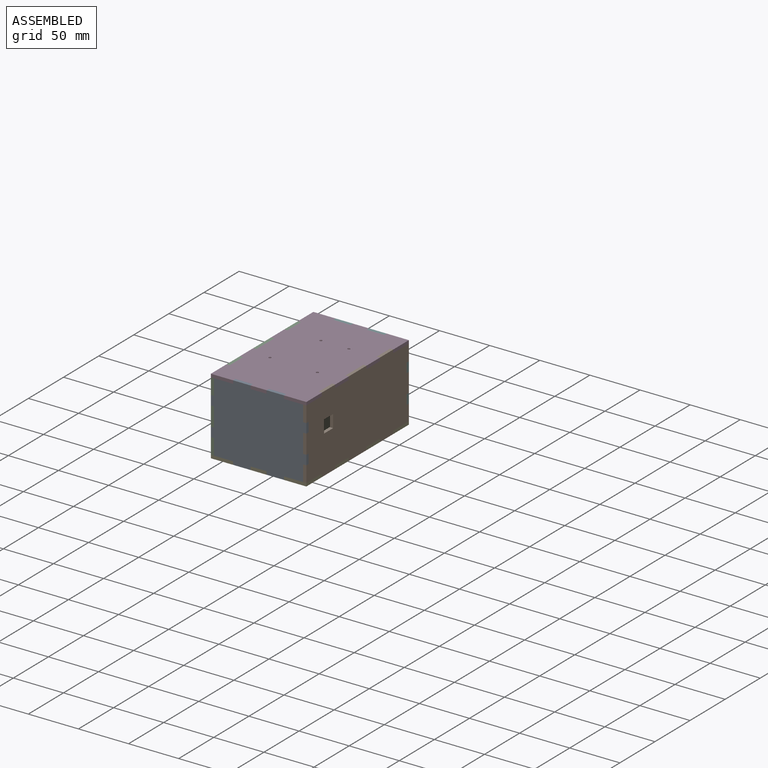
[diagram: assembled view]
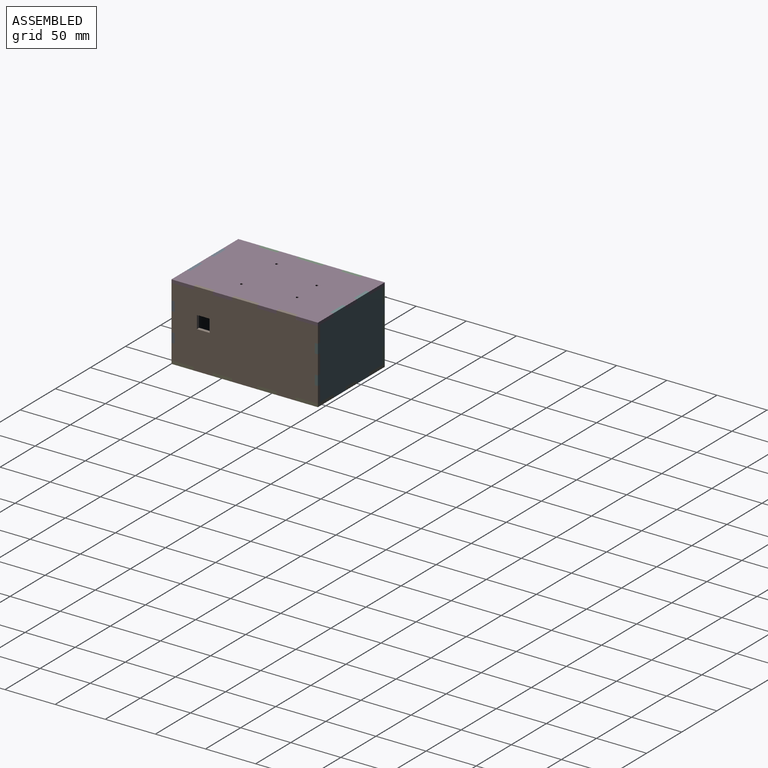
[diagram: assembled view, second angle]
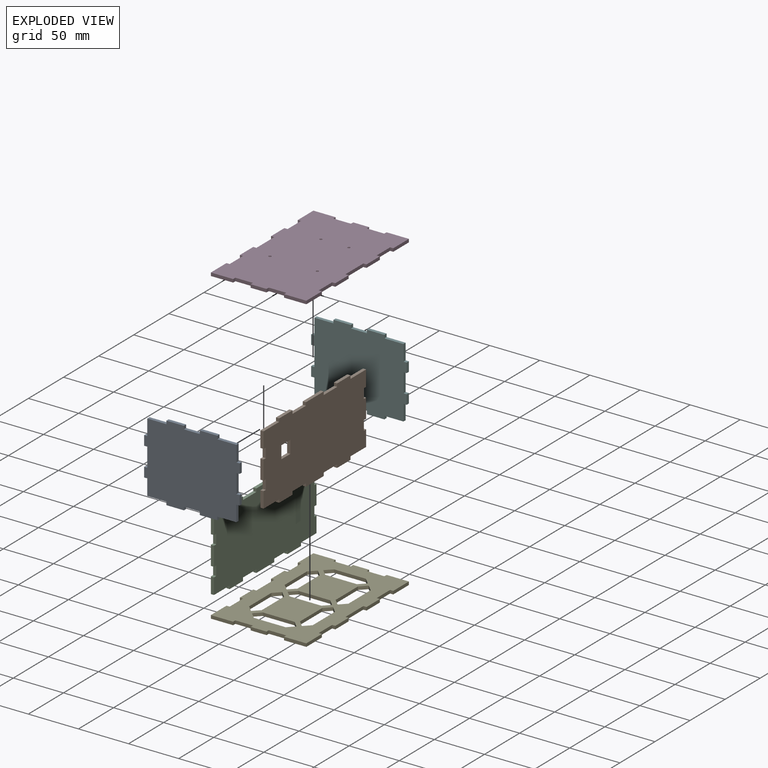
[diagram: exploded view]
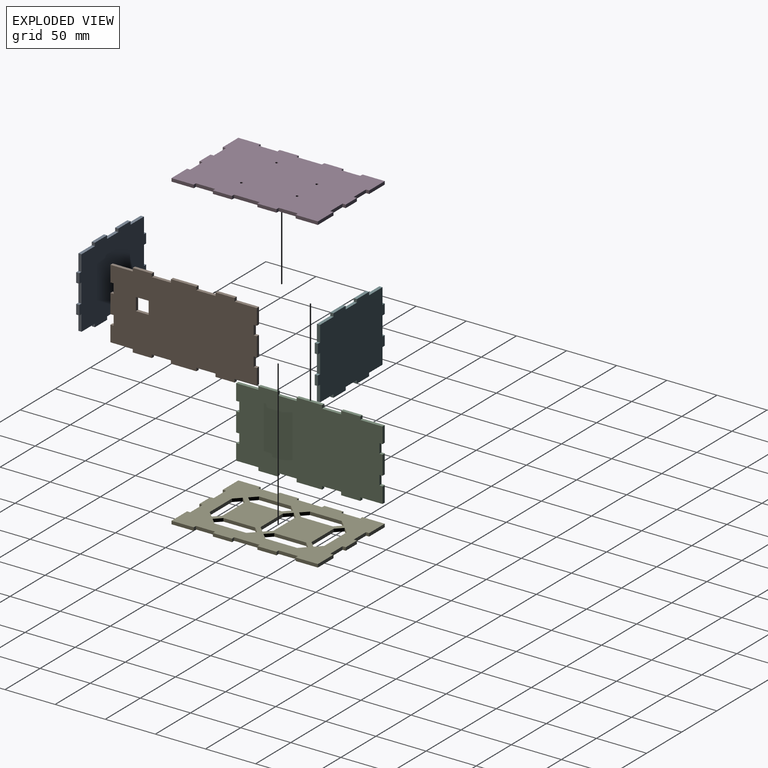
[diagram: exploded view, second angle]
ASSEMBLY  parts=6 mates=5
PART A: 38 faces, bbox 95.3x3.2x76.2 mm
  f0: plane 19.05x3.18mm, normal (-1,0,0), area 60.5mm2, adj f1,f35,f36,f37
  f1: plane 3.18x3.18mm, normal (0,0,1), area 10.1mm2, adj f0,f2,f36,f37
  f2: plane 9.53x3.18mm, normal (-1,0,0), area 30.2mm2, adj f1,f3,f36,f37
  f3: plane 3.18x3.18mm, normal (0,0,-1), area 10.1mm2, adj f2,f4,f36,f37
  f4: plane 15.88x3.18mm, normal (-1,0,0), area 50.4mm2, adj f3,f5,f36,f37
  f5: plane 19.05x3.18mm, normal (0,0,-1), area 60.5mm2, adj f4,f6,f36,f37
  f6: plane 3.18x3.18mm, normal (-1,0,0), area 10.1mm2, adj f5,f7,f36,f37
  f7: plane 17.45x3.18mm, normal (0,0,-1), area 55.4mm2, adj f6,f8,f36,f37
  f8: plane 3.18x3.18mm, normal (1,0,0), area 10.1mm2, adj f7,f9,f36,f37
  f9: plane 15.88x3.18mm, normal (0,0,-1), area 50.4mm2, adj f8,f10,f36,f37
  f10: plane 3.18x3.18mm, normal (-1,0,0), area 10.1mm2, adj f9,f11,f36,f37
  f11: plane 17.48x3.18mm, normal (0,0,-1), area 55.5mm2, adj f10,f12,f36,f37
  f12: plane 3.18x3.18mm, normal (1,0,0), area 10.1mm2, adj f11,f13,f36,f37
  f13: plane 19.05x3.18mm, normal (0,0,-1), area 60.5mm2, adj f12,f14,f36,f37
  f14: plane 15.88x3.18mm, normal (1,0,0), area 50.4mm2, adj f13,f15,f36,f37
  f15: plane 3.18x3.18mm, normal (0,0,-1), area 10.1mm2, adj f14,f16,f36,f37
  f16: plane 9.53x3.18mm, normal (1,0,0), area 30.2mm2, adj f15,f17,f36,f37
  f17: plane 3.18x3.18mm, normal (0,0,1), area 10.1mm2, adj f16,f18,f36,f37
  f18: plane 19.05x3.18mm, normal (1,0,0), area 60.5mm2, adj f17,f19,f36,f37
  f19: plane 3.18x3.18mm, normal (0,0,-1), area 10.1mm2, adj f18,f20,f36,f37
  f20: plane 9.53x3.18mm, normal (1,0,0), area 30.2mm2, adj f19,f21,f36,f37
  f21: plane 3.18x3.18mm, normal (0,0,1), area 10.1mm2, adj f20,f22,f36,f37
  f22: plane 15.88x3.18mm, normal (1,0,0), area 50.4mm2, adj f21,f23,f36,f37
  f23: plane 19.05x3.18mm, normal (0,0,1), area 60.5mm2, adj f22,f24,f36,f37
  f24: plane 3.18x3.18mm, normal (1,0,0), area 10.1mm2, adj f23,f25,f36,f37
  f25: plane 17.48x3.18mm, normal (0,0,1), area 55.5mm2, adj f24,f26,f36,f37
  f26: plane 3.18x3.18mm, normal (-1,0,0), area 10.1mm2, adj f25,f27,f36,f37
  f27: plane 15.88x3.18mm, normal (0,0,1), area 50.4mm2, adj f26,f28,f36,f37
  f28: plane 3.18x3.18mm, normal (1,0,0), area 10.1mm2, adj f27,f29,f36,f37
  f29: plane 17.45x3.18mm, normal (0,0,1), area 55.4mm2, adj f28,f30,f36,f37
  f30: plane 3.18x3.18mm, normal (-1,0,0), area 10.1mm2, adj f29,f31,f36,f37
  f31: plane 19.05x3.18mm, normal (0,0,1), area 60.5mm2, adj f30,f32,f36,f37
  f32: plane 15.88x3.18mm, normal (-1,0,0), area 50.4mm2, adj f31,f33,f36,f37
  f33: plane 3.18x3.18mm, normal (0,0,1), area 10.1mm2, adj f32,f34,f36,f37
  f34: plane 9.53x3.18mm, normal (-1,0,0), area 30.2mm2, adj f33,f35,f36,f37
  f35: plane 3.18x3.18mm, normal (0,0,-1), area 10.1mm2, adj f0,f34,f36,f37
  f36: plane 95.25x76.2mm, normal (0,1,0), area 6552.4mm2, adj f0,f1,f2,f3,f4,f5,f6,f7
  f37: plane 95.25x76.2mm, normal (0,-1,0), area 6552.4mm2, adj f0,f1,f2,f3,f4,f5,f6,f7
PART B: 50 faces, bbox 76.2x3.2x146.1 mm
  f0: plane 146.05x76.2mm, normal (0,1,0), area 10322.6mm2, adj f2,f3,f4,f5,f6,f7,f8,f9
  f1: plane 146.05x76.2mm, normal (0,-1,0), area 10322.6mm2, adj f2,f3,f4,f5,f6,f7,f8,f9
  f2: plane 9.53x3.18mm, normal (0,0,1), area 30.2mm2, adj f0,f1,f3,f45
  f3: plane 3.18x3.18mm, normal (1,0,0), area 10.1mm2, adj f0,f1,f2,f4
  f4: plane 15.88x3.18mm, normal (0,0,1), area 50.4mm2, adj f0,f1,f3,f5
  f5: plane 22.23x3.18mm, normal (-1,0,0), area 70.6mm2, adj f0,f1,f4,f6
  f6: plane 3.18x3.18mm, normal (0,0,1), area 10.1mm2, adj f0,f1,f5,f7
  f7: plane 19.05x3.18mm, normal (-1,0,0), area 60.5mm2, adj f0,f1,f6,f8
  f8: plane 3.18x3.18mm, normal (0,0,-1), area 10.1mm2, adj f0,f1,f7,f9
  f9: plane 19.05x3.18mm, normal (-1,0,0), area 60.5mm2, adj f0,f1,f8,f10
  f10: plane 3.18x3.18mm, normal (0,0,1), area 10.1mm2, adj f0,f1,f9,f11
  f11: plane 25.4x3.18mm, normal (-1,0,0), area 80.6mm2, adj f0,f1,f10,f12
  f12: plane 3.18x3.18mm, normal (0,0,-1), area 10.1mm2, adj f0,f1,f11,f13
  f13: plane 19.05x3.18mm, normal (-1,0,0), area 60.5mm2, adj f0,f1,f12,f14
  f14: plane 3.18x3.18mm, normal (0,0,1), area 10.1mm2, adj f0,f1,f13,f15
  f15: plane 19.05x3.18mm, normal (-1,0,0), area 60.5mm2, adj f0,f1,f14,f16
  f16: plane 3.18x3.18mm, normal (0,0,-1), area 10.1mm2, adj f0,f1,f15,f17
  f17: plane 22.23x3.18mm, normal (-1,0,0), area 70.6mm2, adj f0,f1,f16,f18
  f18: plane 15.88x3.18mm, normal (0,0,-1), area 50.4mm2, adj f0,f1,f17,f19
  f19: plane 3.18x3.18mm, normal (1,0,0), area 10.1mm2, adj f0,f1,f18,f20
  f20: plane 9.53x3.18mm, normal (0,0,-1), area 30.2mm2, adj f0,f1,f19,f21
  f21: plane 3.18x3.18mm, normal (-1,0,0), area 10.1mm2, adj f0,f1,f20,f22
  f22: plane 19.05x3.18mm, normal (0,0,-1), area 60.5mm2, adj f0,f1,f21,f23
  f23: plane 3.18x3.18mm, normal (1,0,0), area 10.1mm2, adj f0,f1,f22,f24
  f24: plane 9.53x3.18mm, normal (0,0,-1), area 30.2mm2, adj f0,f1,f23,f25
  f25: plane 3.18x3.18mm, normal (-1,0,0), area 10.1mm2, adj f0,f1,f24,f26
  f26: plane 15.88x3.18mm, normal (0,0,-1), area 50.4mm2, adj f0,f1,f25,f27
  f27: plane 22.23x3.18mm, normal (1,0,0), area 70.6mm2, adj f0,f1,f26,f28
  f28: plane 3.18x3.18mm, normal (0,0,-1), area 10.1mm2, adj f0,f1,f27,f29
  f29: plane 19.05x3.18mm, normal (1,0,0), area 60.5mm2, adj f0,f1,f28,f30
  f30: plane 3.18x3.18mm, normal (0,0,1), area 10.1mm2, adj f0,f1,f29,f31
  f31: plane 19.05x3.18mm, normal (1,0,0), area 60.5mm2, adj f0,f1,f30,f32
  f32: plane 3.18x3.18mm, normal (0,0,-1), area 10.1mm2, adj f0,f1,f31,f33
  f33: plane 25.4x3.18mm, normal (1,0,0), area 80.6mm2, adj f0,f1,f32,f34
  f34: plane 3.18x3.18mm, normal (0,0,1), area 10.1mm2, adj f0,f1,f33,f35
  f35: plane 19.05x3.18mm, normal (1,0,0), area 60.5mm2, adj f0,f1,f34,f36
  f36: plane 3.18x3.18mm, normal (0,0,-1), area 10.1mm2, adj f0,f1,f35,f37
  f37: plane 19.05x3.18mm, normal (1,0,0), area 60.5mm2, adj f0,f1,f36,f38
  f38: plane 3.18x3.18mm, normal (0,0,1), area 10.1mm2, adj f0,f1,f37,f39
  f39: plane 22.23x3.18mm, normal (1,0,0), area 70.6mm2, adj f0,f1,f38,f40
  f40: plane 15.88x3.18mm, normal (0,0,1), area 50.4mm2, adj f0,f1,f39,f41
  f41: plane 3.18x3.18mm, normal (-1,0,0), area 10.1mm2, adj f0,f1,f40,f42
  f42: plane 9.53x3.18mm, normal (0,0,1), area 30.2mm2, adj f0,f1,f41,f43
  f43: plane 3.18x3.18mm, normal (1,0,0), area 10.1mm2, adj f0,f1,f42,f44
  f44: plane 19.05x3.18mm, normal (0,0,1), area 60.5mm2, adj f0,f1,f43,f45
  f45: plane 3.18x3.18mm, normal (-1,0,0), area 10.1mm2, adj f0,f1,f2,f44
  f46: plane 12.7x3.18mm, normal (0,0,-1), area 40.3mm2, adj f0,f1,f47,f49
  f47: plane 12.7x3.18mm, normal (1,0,0), area 40.3mm2, adj f0,f1,f46,f48
  f48: plane 12.7x3.18mm, normal (0,0,1), area 40.3mm2, adj f0,f1,f47,f49
  f49: plane 12.7x3.18mm, normal (-1,0,0), area 40.3mm2, adj f0,f1,f46,f48
PART C: 46 faces, bbox 76.2x3.2x146.1 mm
  f0: plane 9.53x3.18mm, normal (0,0,1), area 30.2mm2, adj f1,f43,f44,f45
  f1: plane 3.18x3.18mm, normal (1,0,0), area 10.1mm2, adj f0,f2,f44,f45
  f2: plane 15.88x3.18mm, normal (0,0,1), area 50.4mm2, adj f1,f3,f44,f45
  f3: plane 22.23x3.18mm, normal (-1,0,0), area 70.6mm2, adj f2,f4,f44,f45
  f4: plane 3.18x3.18mm, normal (0,0,1), area 10.1mm2, adj f3,f5,f44,f45
  f5: plane 19.05x3.18mm, normal (-1,0,0), area 60.5mm2, adj f4,f6,f44,f45
  f6: plane 3.18x3.18mm, normal (0,0,-1), area 10.1mm2, adj f5,f7,f44,f45
  f7: plane 19.05x3.18mm, normal (-1,0,0), area 60.5mm2, adj f6,f8,f44,f45
  f8: plane 3.18x3.18mm, normal (0,0,1), area 10.1mm2, adj f7,f9,f44,f45
  f9: plane 25.4x3.18mm, normal (-1,0,0), area 80.6mm2, adj f8,f10,f44,f45
  f10: plane 3.18x3.18mm, normal (0,0,-1), area 10.1mm2, adj f9,f11,f44,f45
  f11: plane 19.05x3.18mm, normal (-1,0,0), area 60.5mm2, adj f10,f12,f44,f45
  f12: plane 3.18x3.18mm, normal (0,0,1), area 10.1mm2, adj f11,f13,f44,f45
  f13: plane 19.05x3.18mm, normal (-1,0,0), area 60.5mm2, adj f12,f14,f44,f45
  f14: plane 3.18x3.18mm, normal (0,0,-1), area 10.1mm2, adj f13,f15,f44,f45
  f15: plane 22.23x3.18mm, normal (-1,0,0), area 70.6mm2, adj f14,f16,f44,f45
  f16: plane 15.88x3.18mm, normal (0,0,-1), area 50.4mm2, adj f15,f17,f44,f45
  f17: plane 3.18x3.18mm, normal (1,0,0), area 10.1mm2, adj f16,f18,f44,f45
  f18: plane 9.53x3.18mm, normal (0,0,-1), area 30.2mm2, adj f17,f19,f44,f45
  f19: plane 3.18x3.18mm, normal (-1,0,0), area 10.1mm2, adj f18,f20,f44,f45
  f20: plane 19.05x3.18mm, normal (0,0,-1), area 60.5mm2, adj f19,f21,f44,f45
  f21: plane 3.18x3.18mm, normal (1,0,0), area 10.1mm2, adj f20,f22,f44,f45
  f22: plane 9.53x3.18mm, normal (0,0,-1), area 30.2mm2, adj f21,f23,f44,f45
  f23: plane 3.18x3.18mm, normal (-1,0,0), area 10.1mm2, adj f22,f24,f44,f45
  f24: plane 15.88x3.18mm, normal (0,0,-1), area 50.4mm2, adj f23,f25,f44,f45
  f25: plane 22.23x3.18mm, normal (1,0,0), area 70.6mm2, adj f24,f26,f44,f45
  f26: plane 3.18x3.18mm, normal (0,0,-1), area 10.1mm2, adj f25,f27,f44,f45
  f27: plane 19.05x3.18mm, normal (1,0,0), area 60.5mm2, adj f26,f28,f44,f45
  f28: plane 3.18x3.18mm, normal (0,0,1), area 10.1mm2, adj f27,f29,f44,f45
  f29: plane 19.05x3.18mm, normal (1,0,0), area 60.5mm2, adj f28,f30,f44,f45
  f30: plane 3.18x3.18mm, normal (0,0,-1), area 10.1mm2, adj f29,f31,f44,f45
  f31: plane 25.4x3.18mm, normal (1,0,0), area 80.6mm2, adj f30,f32,f44,f45
  f32: plane 3.18x3.18mm, normal (0,0,1), area 10.1mm2, adj f31,f33,f44,f45
  f33: plane 19.05x3.18mm, normal (1,0,0), area 60.5mm2, adj f32,f34,f44,f45
  f34: plane 3.18x3.18mm, normal (0,0,-1), area 10.1mm2, adj f33,f35,f44,f45
  f35: plane 19.05x3.18mm, normal (1,0,0), area 60.5mm2, adj f34,f36,f44,f45
  f36: plane 3.18x3.18mm, normal (0,0,1), area 10.1mm2, adj f35,f37,f44,f45
  f37: plane 22.23x3.18mm, normal (1,0,0), area 70.6mm2, adj f36,f38,f44,f45
  f38: plane 15.88x3.18mm, normal (0,0,1), area 50.4mm2, adj f37,f39,f44,f45
  f39: plane 3.18x3.18mm, normal (-1,0,0), area 10.1mm2, adj f38,f40,f44,f45
  f40: plane 9.53x3.18mm, normal (0,0,1), area 30.2mm2, adj f39,f41,f44,f45
  f41: plane 3.18x3.18mm, normal (1,0,0), area 10.1mm2, adj f40,f42,f44,f45
  f42: plane 19.05x3.18mm, normal (0,0,1), area 60.5mm2, adj f41,f43,f44,f45
  f43: plane 3.18x3.18mm, normal (-1,0,0), area 10.1mm2, adj f0,f42,f44,f45
  f44: plane 146.05x76.2mm, normal (0,1,0), area 10483.8mm2, adj f0,f1,f2,f3,f4,f5,f6,f7
  f45: plane 146.05x76.2mm, normal (0,-1,0), area 10483.8mm2, adj f0,f1,f2,f3,f4,f5,f6,f7
PART D: 50 faces, bbox 95.3x3.2x146.1 mm
  f0: plane 3.18x3.18mm, normal (0,0,-1), area 10.1mm2, adj f1,f43,f44,f45
  f1: plane 19.05x3.18mm, normal (-1,0,0), area 60.5mm2, adj f0,f2,f44,f45
  f2: plane 3.18x3.18mm, normal (0,0,1), area 10.1mm2, adj f1,f3,f44,f45
  f3: plane 19.05x3.18mm, normal (-1,0,0), area 60.5mm2, adj f2,f4,f44,f45
  f4: plane 3.18x3.18mm, normal (0,0,-1), area 10.1mm2, adj f3,f5,f44,f45
  f5: plane 25.4x3.18mm, normal (-1,0,0), area 80.6mm2, adj f4,f6,f44,f45
  f6: plane 3.18x3.18mm, normal (0,0,1), area 10.1mm2, adj f5,f7,f44,f45
  f7: plane 19.05x3.18mm, normal (-1,0,0), area 60.5mm2, adj f6,f8,f44,f45
  f8: plane 3.18x3.18mm, normal (0,0,-1), area 10.1mm2, adj f7,f9,f44,f45
  f9: plane 19.05x3.18mm, normal (-1,0,0), area 60.5mm2, adj f8,f10,f44,f45
  f10: plane 3.18x3.18mm, normal (0,0,1), area 10.1mm2, adj f9,f11,f44,f45
  f11: plane 22.23x3.18mm, normal (-1,0,0), area 70.6mm2, adj f10,f12,f44,f45
  f12: plane 22.23x3.18mm, normal (0,0,-1), area 70.6mm2, adj f11,f13,f44,f45
  f13: plane 3.18x3.18mm, normal (1,0,0), area 10.1mm2, adj f12,f14,f44,f45
  f14: plane 17.46x3.18mm, normal (0,0,-1), area 55.4mm2, adj f13,f15,f44,f45
  f15: plane 3.18x3.18mm, normal (-1,0,0), area 10.1mm2, adj f14,f16,f44,f45
  f16: plane 15.88x3.18mm, normal (0,0,-1), area 50.4mm2, adj f15,f17,f44,f45
  f17: plane 3.18x3.18mm, normal (1,0,0), area 10.1mm2, adj f16,f18,f44,f45
  f18: plane 17.46x3.18mm, normal (0,0,-1), area 55.4mm2, adj f17,f19,f44,f45
  f19: plane 3.18x3.18mm, normal (-1,0,0), area 10.1mm2, adj f18,f20,f44,f45
  f20: plane 22.23x3.18mm, normal (0,0,-1), area 70.6mm2, adj f19,f21,f44,f45
  f21: plane 22.23x3.18mm, normal (1,0,0), area 70.6mm2, adj f20,f22,f44,f45
  f22: plane 3.18x3.18mm, normal (0,0,1), area 10.1mm2, adj f21,f23,f44,f45
  f23: plane 19.05x3.18mm, normal (1,0,0), area 60.5mm2, adj f22,f24,f44,f45
  f24: plane 3.18x3.18mm, normal (0,0,-1), area 10.1mm2, adj f23,f25,f44,f45
  f25: plane 19.05x3.18mm, normal (1,0,0), area 60.5mm2, adj f24,f26,f44,f45
  f26: plane 3.18x3.18mm, normal (0,0,1), area 10.1mm2, adj f25,f27,f44,f45
  f27: plane 25.4x3.18mm, normal (1,0,0), area 80.6mm2, adj f26,f28,f44,f45
  f28: plane 3.18x3.18mm, normal (0,0,-1), area 10.1mm2, adj f27,f29,f44,f45
  f29: plane 19.05x3.18mm, normal (1,0,0), area 60.5mm2, adj f28,f30,f44,f45
  f30: plane 3.18x3.18mm, normal (0,0,1), area 10.1mm2, adj f29,f31,f44,f45
  f31: plane 19.05x3.18mm, normal (1,0,0), area 60.5mm2, adj f30,f32,f44,f45
  f32: plane 3.18x3.18mm, normal (0,0,-1), area 10.1mm2, adj f31,f33,f44,f45
  f33: plane 22.23x3.18mm, normal (1,0,0), area 70.6mm2, adj f32,f34,f44,f45
  f34: plane 22.23x3.18mm, normal (0,0,1), area 70.6mm2, adj f33,f35,f44,f45
  f35: plane 3.18x3.18mm, normal (-1,0,0), area 10.1mm2, adj f34,f36,f44,f45
  f36: plane 17.46x3.18mm, normal (0,0,1), area 55.4mm2, adj f35,f37,f44,f45
  f37: plane 3.18x3.18mm, normal (1,0,0), area 10.1mm2, adj f36,f38,f44,f45
  f38: plane 15.88x3.18mm, normal (0,0,1), area 50.4mm2, adj f37,f39,f44,f45
  f39: plane 3.18x3.18mm, normal (-1,0,0), area 10.1mm2, adj f38,f40,f44,f45
  f40: plane 17.46x3.18mm, normal (0,0,1), area 55.4mm2, adj f39,f41,f44,f45
  f41: plane 3.18x3.18mm, normal (1,0,0), area 10.1mm2, adj f40,f42,f44,f45
  f42: plane 22.23x3.18mm, normal (0,0,1), area 70.6mm2, adj f41,f43,f44,f45
  f43: plane 22.23x3.18mm, normal (-1,0,0), area 70.6mm2, adj f0,f42,f44,f45
  f44: plane 146.05x95.25mm, normal (0,1,0), area 13266mm2, adj f0,f1,f2,f3,f4,f5,f6,f7
  f45: plane 146.05x95.25mm, normal (0,-1,0), area 13266mm2, adj f0,f1,f2,f3,f4,f5,f6,f7
  f46: cylinder r=1.27mm len=3.18mm, axis (0,-1,0), area 25.3mm2, adj f44,f45
  f47: cylinder r=1.27mm len=3.18mm, axis (0,-1,0), area 25.3mm2, adj f44,f45
  f48: cylinder r=1.27mm len=3.18mm, axis (0,-1,0), area 25.3mm2, adj f44,f45
  f49: cylinder r=1.27mm len=3.18mm, axis (0,-1,0), area 25.3mm2, adj f44,f45
PART E: 88 faces, bbox 95.3x3.2x146.1 mm
  f0: plane 146.05x95.25mm, normal (0,1,0), area 9899.2mm2, adj f2,f3,f4,f5,f6,f7,f8,f9
  f1: plane 146.05x95.25mm, normal (0,-1,0), area 9899.2mm2, adj f2,f3,f4,f5,f6,f7,f8,f9
  f2: plane 3.18x3.18mm, normal (0,0,-1), area 10.1mm2, adj f0,f1,f3,f45
  f3: plane 19.05x3.18mm, normal (-1,0,0), area 60.5mm2, adj f0,f1,f2,f4
  f4: plane 3.18x3.18mm, normal (0,0,1), area 10.1mm2, adj f0,f1,f3,f5
  f5: plane 19.05x3.18mm, normal (-1,0,0), area 60.5mm2, adj f0,f1,f4,f6
  f6: plane 3.18x3.18mm, normal (0,0,-1), area 10.1mm2, adj f0,f1,f5,f7
  f7: plane 25.4x3.18mm, normal (-1,0,0), area 80.6mm2, adj f0,f1,f6,f8
  f8: plane 3.18x3.18mm, normal (0,0,1), area 10.1mm2, adj f0,f1,f7,f9
  f9: plane 19.05x3.18mm, normal (-1,0,0), area 60.5mm2, adj f0,f1,f8,f10
  f10: plane 3.18x3.18mm, normal (0,0,-1), area 10.1mm2, adj f0,f1,f9,f11
  f11: plane 19.05x3.18mm, normal (-1,0,0), area 60.5mm2, adj f0,f1,f10,f12
  f12: plane 3.18x3.18mm, normal (0,0,1), area 10.1mm2, adj f0,f1,f11,f13
  f13: plane 22.23x3.18mm, normal (-1,0,0), area 70.6mm2, adj f0,f1,f12,f14
  f14: plane 22.23x3.18mm, normal (0,0,-1), area 70.6mm2, adj f0,f1,f13,f15
  f15: plane 3.18x3.18mm, normal (1,0,0), area 10.1mm2, adj f0,f1,f14,f16
  f16: plane 17.46x3.18mm, normal (0,0,-1), area 55.4mm2, adj f0,f1,f15,f17
  f17: plane 3.18x3.18mm, normal (-1,0,0), area 10.1mm2, adj f0,f1,f16,f18
  f18: plane 15.88x3.18mm, normal (0,0,-1), area 50.4mm2, adj f0,f1,f17,f19
  f19: plane 3.18x3.18mm, normal (1,0,0), area 10.1mm2, adj f0,f1,f18,f20
  f20: plane 17.46x3.18mm, normal (0,0,-1), area 55.4mm2, adj f0,f1,f19,f21
  f21: plane 3.18x3.18mm, normal (-1,0,0), area 10.1mm2, adj f0,f1,f20,f22
  f22: plane 22.23x3.18mm, normal (0,0,-1), area 70.6mm2, adj f0,f1,f21,f23
  f23: plane 22.23x3.18mm, normal (1,0,0), area 70.6mm2, adj f0,f1,f22,f24
  f24: plane 3.18x3.18mm, normal (0,0,1), area 10.1mm2, adj f0,f1,f23,f25
  f25: plane 19.05x3.18mm, normal (1,0,0), area 60.5mm2, adj f0,f1,f24,f26
  f26: plane 3.18x3.18mm, normal (0,0,-1), area 10.1mm2, adj f0,f1,f25,f27
  f27: plane 19.05x3.18mm, normal (1,0,0), area 60.5mm2, adj f0,f1,f26,f28
  f28: plane 3.18x3.18mm, normal (0,0,1), area 10.1mm2, adj f0,f1,f27,f29
  f29: plane 25.4x3.18mm, normal (1,0,0), area 80.6mm2, adj f0,f1,f28,f30
  f30: plane 3.18x3.18mm, normal (0,0,-1), area 10.1mm2, adj f0,f1,f29,f31
  f31: plane 19.05x3.18mm, normal (1,0,0), area 60.5mm2, adj f0,f1,f30,f32
  f32: plane 3.18x3.18mm, normal (0,0,1), area 10.1mm2, adj f0,f1,f31,f33
  f33: plane 19.05x3.18mm, normal (1,0,0), area 60.5mm2, adj f0,f1,f32,f34
  f34: plane 3.18x3.18mm, normal (0,0,-1), area 10.1mm2, adj f0,f1,f33,f35
  f35: plane 22.23x3.18mm, normal (1,0,0), area 70.6mm2, adj f0,f1,f34,f36
  f36: plane 22.23x3.18mm, normal (0,0,1), area 70.6mm2, adj f0,f1,f35,f37
  f37: plane 3.18x3.18mm, normal (-1,0,0), area 10.1mm2, adj f0,f1,f36,f38
  f38: plane 17.46x3.18mm, normal (0,0,1), area 55.4mm2, adj f0,f1,f37,f39
  f39: plane 3.18x3.18mm, normal (1,0,0), area 10.1mm2, adj f0,f1,f38,f40
  f40: plane 15.88x3.18mm, normal (0,0,1), area 50.4mm2, adj f0,f1,f39,f41
  f41: plane 3.18x3.18mm, normal (-1,0,0), area 10.1mm2, adj f0,f1,f40,f42
  f42: plane 17.46x3.18mm, normal (0,0,1), area 55.4mm2, adj f0,f1,f41,f43
  f43: plane 3.18x3.18mm, normal (1,0,0), area 10.1mm2, adj f0,f1,f42,f44
  f44: plane 22.23x3.18mm, normal (0,0,1), area 70.6mm2, adj f0,f1,f43,f45
  f45: plane 22.23x3.18mm, normal (-1,0,0), area 70.6mm2, adj f0,f1,f2,f44
  f46: plane 6.35x6.35mm, normal (-0.71,0,-0.71), area 28.5mm2, adj f0,f1,f47,f51
  f47: plane 31.75x3.18mm, normal (0,0,-1), area 100.8mm2, adj f0,f1,f46,f48
  f48: plane 6.35x6.35mm, normal (0.71,0,-0.71), area 28.5mm2, adj f0,f1,f47,f49
  f49: plane 6.35x6.35mm, normal (0.71,0,0.71), area 28.5mm2, adj f0,f1,f48,f50
  f50: plane 31.75x3.18mm, normal (0,0,1), area 100.8mm2, adj f0,f1,f49,f51
  f51: plane 6.35x6.35mm, normal (-0.71,0,0.71), area 28.5mm2, adj f0,f1,f46,f50
  f52: plane 6.35x6.35mm, normal (0.71,0,0.71), area 28.5mm2, adj f0,f1,f53,f57
  f53: plane 31.75x3.18mm, normal (0,0,1), area 100.8mm2, adj f0,f1,f52,f54
  f54: plane 6.35x6.35mm, normal (-0.71,0,0.71), area 28.5mm2, adj f0,f1,f53,f55
  f55: plane 6.35x6.35mm, normal (-0.71,0,-0.71), area 28.5mm2, adj f0,f1,f54,f56
  f56: plane 31.75x3.18mm, normal (0,0,-1), area 100.8mm2, adj f0,f1,f55,f57
  f57: plane 6.35x6.35mm, normal (0.71,0,-0.71), area 28.5mm2, adj f0,f1,f52,f56
  f58: plane 6.35x6.35mm, normal (-0.71,0,0.71), area 28.5mm2, adj f0,f1,f59,f63
  f59: plane 31.75x3.18mm, normal (-1,0,0), area 100.8mm2, adj f0,f1,f58,f60
  f60: plane 6.35x6.35mm, normal (-0.71,0,-0.71), area 28.5mm2, adj f0,f1,f59,f61
  f61: plane 6.35x6.35mm, normal (0.71,0,-0.71), area 28.5mm2, adj f0,f1,f60,f62
  f62: plane 31.75x3.18mm, normal (1,0,0), area 100.8mm2, adj f0,f1,f61,f63
  f63: plane 6.35x6.35mm, normal (0.71,0,0.71), area 28.5mm2, adj f0,f1,f58,f62
  f64: plane 6.35x6.35mm, normal (0.71,0,-0.71), area 28.5mm2, adj f0,f1,f65,f69
  f65: plane 31.75x3.18mm, normal (1,0,0), area 100.8mm2, adj f0,f1,f64,f66
  f66: plane 6.35x6.35mm, normal (0.71,0,0.71), area 28.5mm2, adj f0,f1,f65,f67
  f67: plane 6.35x6.35mm, normal (-0.71,0,0.71), area 28.5mm2, adj f0,f1,f66,f68
  f68: plane 31.75x3.18mm, normal (-1,0,0), area 100.8mm2, adj f0,f1,f67,f69
  f69: plane 6.35x6.35mm, normal (-0.71,0,-0.71), area 28.5mm2, adj f0,f1,f64,f68
  f70: plane 6.35x6.35mm, normal (0.71,0,-0.71), area 28.5mm2, adj f0,f1,f71,f75
  f71: plane 31.75x3.18mm, normal (1,0,0), area 100.8mm2, adj f0,f1,f70,f72
  f72: plane 6.35x6.35mm, normal (0.71,0,0.71), area 28.5mm2, adj f0,f1,f71,f73
  f73: plane 6.35x6.35mm, normal (-0.71,0,0.71), area 28.5mm2, adj f0,f1,f72,f74
  f74: plane 31.75x3.18mm, normal (-1,0,0), area 100.8mm2, adj f0,f1,f73,f75
  f75: plane 6.35x6.35mm, normal (-0.71,0,-0.71), area 28.5mm2, adj f0,f1,f70,f74
  f76: plane 6.35x6.35mm, normal (0.71,0,-0.71), area 28.5mm2, adj f0,f1,f77,f81
  f77: plane 31.75x3.18mm, normal (1,0,0), area 100.8mm2, adj f0,f1,f76,f78
  f78: plane 6.35x6.35mm, normal (0.71,0,0.71), area 28.5mm2, adj f0,f1,f77,f79
  f79: plane 6.35x6.35mm, normal (-0.71,0,0.71), area 28.5mm2, adj f0,f1,f78,f80
  f80: plane 31.75x3.18mm, normal (-1,0,0), area 100.8mm2, adj f0,f1,f79,f81
  f81: plane 6.35x6.35mm, normal (-0.71,0,-0.71), area 28.5mm2, adj f0,f1,f76,f80
  f82: plane 6.35x6.35mm, normal (0.71,0,0.71), area 28.5mm2, adj f0,f1,f83,f87
  f83: plane 31.75x3.18mm, normal (0,0,1), area 100.8mm2, adj f0,f1,f82,f84
  f84: plane 6.35x6.35mm, normal (-0.71,0,0.71), area 28.5mm2, adj f0,f1,f83,f85
  f85: plane 6.35x6.35mm, normal (-0.71,0,-0.71), area 28.5mm2, adj f0,f1,f84,f86
  f86: plane 31.75x3.18mm, normal (0,0,-1), area 100.8mm2, adj f0,f1,f85,f87
  f87: plane 6.35x6.35mm, normal (0.71,0,-0.71), area 28.5mm2, adj f0,f1,f82,f86
PART F: same geometry as A
PLACE A rot(axis=(0,0,-1),180deg) t=(-132.47,-165.2,-72.76)mm
PLACE B rot(axis=(0.58,0.58,-0.58),120deg) t=(-88.02,-95.35,-72.76)mm
PLACE C rot(axis=(0.58,0.58,-0.58),120deg) t=(-180.1,-95.35,-72.76)mm
PLACE D rot(axis=(0,0.71,-0.71),180deg) t=(-132.47,-95.35,-34.66)mm
PLACE E rot(axis=(1,0,0),90deg) t=(-132.47,-95.35,-110.86)mm
PLACE F rot(axis=(-1,0.05,0.01),0deg) t=(-132.47,-25.5,-72.76)mm
MATE fastened D.f32 <-> C.f4  axis (0,1,0) through (-178.51,-146.15,-36.25)mm
MATE fastened F.f21 <-> B.f19  axis (0,0,1) through (-86.44,-23.91,-53.71)mm
MATE fastened B.f41 <-> A.f3  axis (0,0,1) through (-86.44,-166.79,-91.81)mm
MATE fastened E.f4 <-> C.f34  axis (0,-1,0) through (-178.51,-127.1,-109.27)mm
MATE fastened E.f32 <-> B.f36  axis (0,-1,0) through (-86.44,-127.1,-109.27)mm
